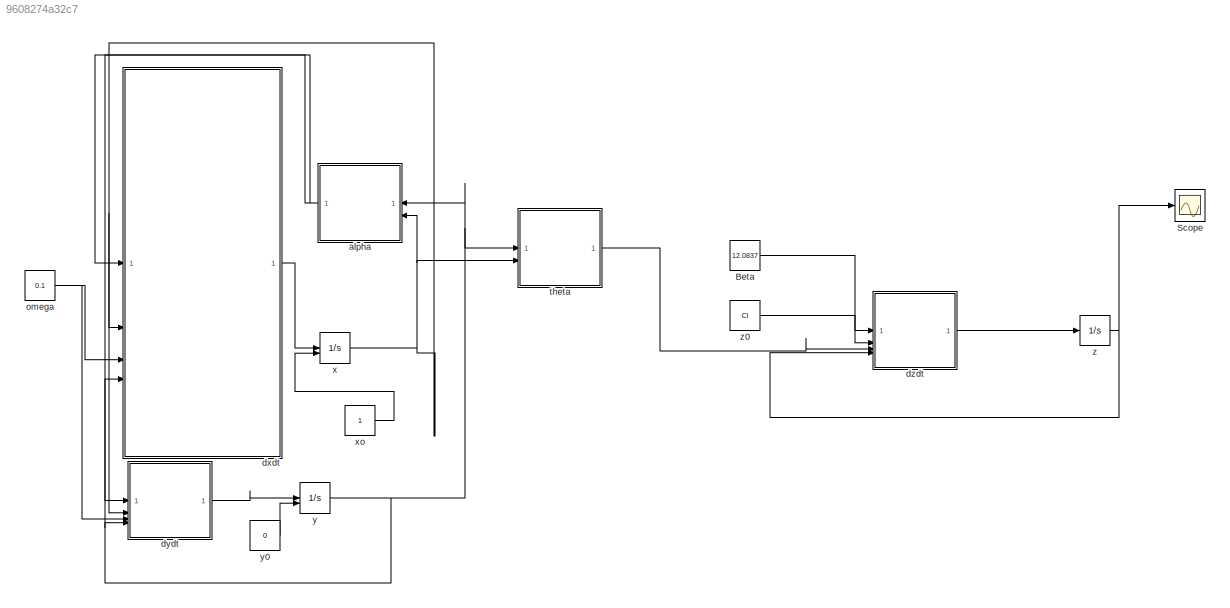
MODEL slx_9608274a32c7
KIND model
CONFIG AbsTol = auto
CONFIG EnableMultiTasking = off
CONFIG FixedStep = 0.01
CONFIG MaxStep = auto
CONFIG MinStep = auto
CONFIG RelTol = 1e-3
CONFIG SampleTimeConstraint = Unconstrained
CONFIG SolverName = ode4
CONFIG StartTime = 0.0
CONFIG StopTime = inf
BLOCK [Constant] Beta
  Value = 12.0837
BLOCK [Scope] Scope
  Floating = off
  NumInputPorts = 1
  ScopeSpecificationString = Simulink.scopes.TimeScopeBlockCfg('CurrentConfiguration', extmgr.ConfigurationSet(extmgr.Configuration('Core','General UI',true),extmgr.Configuration('Core','Source UI',true),extmgr.Configuration('Sources','WiredSimulink',true),extmgr.Configuration('Visuals','Time Domain',true,'SerializedDisplays',{struct('MinYLimReal','0.085001','MaxYLimReal','0.0850084','YLabelReal','','MinYLimMag','0.085001','M...<+1364ch>
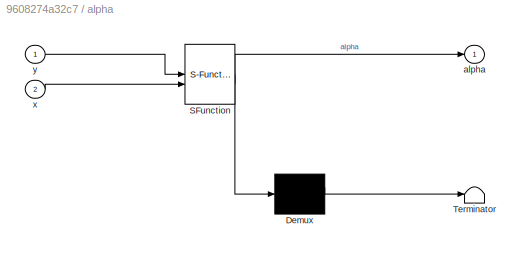
BLOCK [SubSystem] alpha
  ErrorFcn = Stateflow.Translate.translate
  PermitHierarchicalResolution = ExplicitOnly
  SFBlockType = MATLAB Function
  TreatAsAtomicUnit = on
BLOCK [Demux] alpha/ Demux 
  Outputs = 1
BLOCK [S-Function] alpha/ SFunction 
  EnableBusSupport = on
  FunctionName = sf_sfun
  PortCounts = [2 2]
  SFcnIsStateOwnerBlock = off
  SFunctionDeploymentMode = off
  Tag = Stateflow S-Function 4
BLOCK [Terminator] alpha/ Terminator 
BLOCK [Outport] alpha/alpha
BLOCK [Inport] alpha/x
  Port = 2
BLOCK [Inport] alpha/y
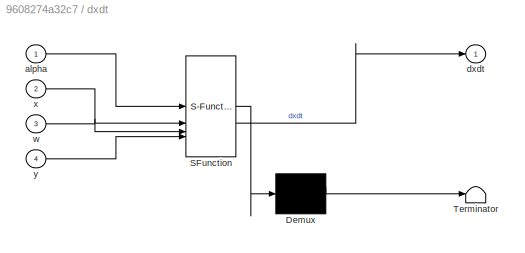
BLOCK [SubSystem] dxdt
  ErrorFcn = Stateflow.Translate.translate
  PermitHierarchicalResolution = ExplicitOnly
  SFBlockType = MATLAB Function
  TreatAsAtomicUnit = on
BLOCK [Demux] dxdt/ Demux 
  Outputs = 1
BLOCK [S-Function] dxdt/ SFunction 
  EnableBusSupport = on
  FunctionName = sf_sfun
  PortCounts = [4 2]
  SFcnIsStateOwnerBlock = off
  SFunctionDeploymentMode = off
  Tag = Stateflow S-Function 2
BLOCK [Terminator] dxdt/ Terminator 
BLOCK [Inport] dxdt/alpha
BLOCK [Outport] dxdt/dxdt
BLOCK [Inport] dxdt/w
  Port = 3
BLOCK [Inport] dxdt/x
  Port = 2
BLOCK [Inport] dxdt/y
  Port = 4
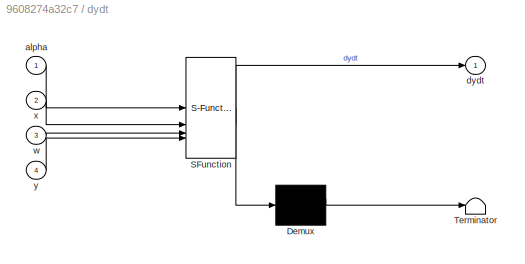
BLOCK [SubSystem] dydt
  ErrorFcn = Stateflow.Translate.translate
  PermitHierarchicalResolution = ExplicitOnly
  SFBlockType = MATLAB Function
  TreatAsAtomicUnit = on
BLOCK [Demux] dydt/ Demux 
  Outputs = 1
BLOCK [S-Function] dydt/ SFunction 
  EnableBusSupport = on
  FunctionName = sf_sfun
  PortCounts = [4 2]
  SFcnIsStateOwnerBlock = off
  SFunctionDeploymentMode = off
  Tag = Stateflow S-Function 1
BLOCK [Terminator] dydt/ Terminator 
BLOCK [Inport] dydt/alpha
BLOCK [Outport] dydt/dydt
BLOCK [Inport] dydt/w
  Port = 3
BLOCK [Inport] dydt/x
  Port = 2
BLOCK [Inport] dydt/y
  Port = 4
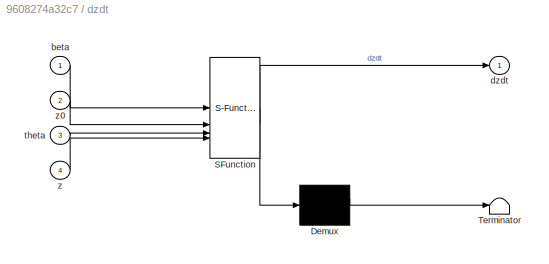
BLOCK [SubSystem] dzdt
  ErrorFcn = Stateflow.Translate.translate
  PermitHierarchicalResolution = ExplicitOnly
  SFBlockType = MATLAB Function
  TreatAsAtomicUnit = on
BLOCK [Demux] dzdt/ Demux 
  Outputs = 1
BLOCK [S-Function] dzdt/ SFunction 
  EnableBusSupport = on
  FunctionName = sf_sfun
  PortCounts = [4 2]
  SFcnIsStateOwnerBlock = off
  SFunctionDeploymentMode = off
  Tag = Stateflow S-Function 3
BLOCK [Terminator] dzdt/ Terminator 
BLOCK [Inport] dzdt/beta
BLOCK [Outport] dzdt/dzdt
BLOCK [Inport] dzdt/theta
  Port = 3
BLOCK [Inport] dzdt/z
  Port = 4
BLOCK [Inport] dzdt/z0
  Port = 2
BLOCK [Constant] omega 
  Value = 0.1
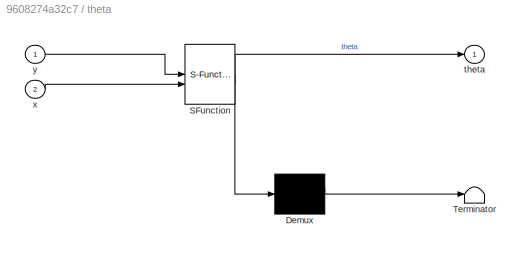
BLOCK [SubSystem] theta 
  ErrorFcn = Stateflow.Translate.translate
  PermitHierarchicalResolution = ExplicitOnly
  SFBlockType = MATLAB Function
  TreatAsAtomicUnit = on
BLOCK [Demux] theta / Demux 
  Outputs = 1
BLOCK [S-Function] theta / SFunction 
  EnableBusSupport = on
  FunctionName = sf_sfun
  PortCounts = [2 2]
  SFcnIsStateOwnerBlock = off
  SFunctionDeploymentMode = off
  Tag = Stateflow S-Function 5
BLOCK [Terminator] theta / Terminator 
BLOCK [Outport] theta /theta
BLOCK [Inport] theta /x
  Port = 2
BLOCK [Inport] theta /y
BLOCK [Integrator] x
  InitialCondition = 1
  InitialConditionSource = external
BLOCK [Constant] xo 
BLOCK [Integrator] y
  InitialCondition = 1
  InitialConditionSource = external
BLOCK [Constant] y0 
  Value = 0
BLOCK [Integrator] z
BLOCK [Constant] z0
  Value = CI
LINE Beta:1 -> dzdt:1
NET alpha:1 -> dxdt:1, dydt:1
LINE dxdt:1 -> x:1
LINE dydt:1 -> y:1
LINE dzdt:1 -> z:1
NET omega :1 -> dxdt:3, dydt:3
LINE theta :1 -> dzdt:3
NET x:1 -> alpha:2, dxdt:2, dydt:2, theta :2
LINE xo :1 -> x:2
LINE y0 :1 -> y:2
NET y:1 -> alpha:1, dxdt:4, dydt:4, theta :1
LINE z0:1 -> dzdt:2
NET z:1 -> Scope:1, dzdt:4
note: NET lines group one-source signal fan-out (src -> all destinations, sorted); 1:1 wires keep LINE
CHART dydt states=1 transitions=1
  STATE_LABEL 'eML_blk_kernel()'
  STATE_LABEL 'SCRIPT:\nfunction dydt = fcn(alpha, x, w, y)\ndydt = alpha*y + w*x;'
CHART dxdt states=1 transitions=1
  STATE_LABEL 'eML_blk_kernel()'
  STATE_LABEL 'SCRIPT:\nfunction dxdt = fcn(alpha, x, w, y)\ndxdt = alpha*x - w*y;'
CHART dzdt states=1 transitions=1
  STATE_LABEL 'eML_blk_kernel()'
  STATE_LABEL 'SCRIPT:\nfunction dzdt = fcn(beta,z0, theta, z)\na = [2.2897 12.4562 16.3255];\nb = [9.3154 8.4272 6.1772];\nthetaT = [6.1224 0.7493 0.4];\natractores = 0;\nprimerTermino = beta*(z - z0);\nfor i = 1:length(a)\n    atractores =  atractores + a(i)*exp(-b(i)*abs(theta - thetaT(i)));\nend\ndzdt = - primerTermino + atractores;'
CHART alpha states=1 transitions=1
  STATE_LABEL 'eML_blk_kernel()'
  STATE_LABEL 'SCRIPT:\nfunction alpha = fcn(y, x)\n\nalpha = 1 - sqrt(x^2 + y ^2)'
CHART theta
 states=1 transitions=1
  STATE_LABEL 'eML_blk_kernel()'
  STATE_LABEL 'SCRIPT:\nfunction theta = fcn(y, x)\nangulo  = atan2(y, x);\nif angulo <0 \n    angulo = angulo + 2*pi\nend\ntheta = angulo;'
CHART  states=0 transitions=0
CHART  states=0 transitions=0
CHART  states=0 transitions=0
CHART  states=0 transitions=0
CHART  states=0 transitions=0
